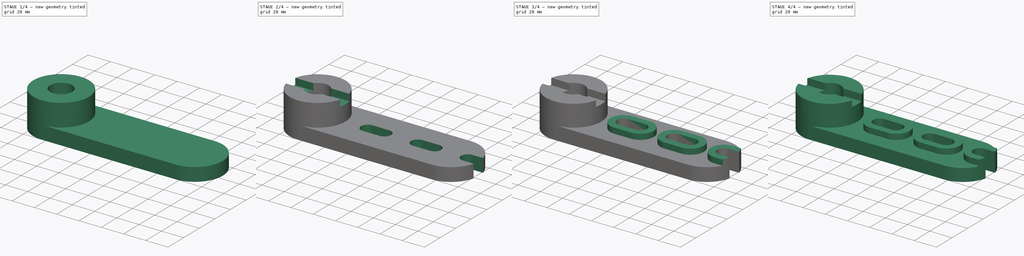
[diagram: build sequence overview — one tinted view per stage of 4, left to right]
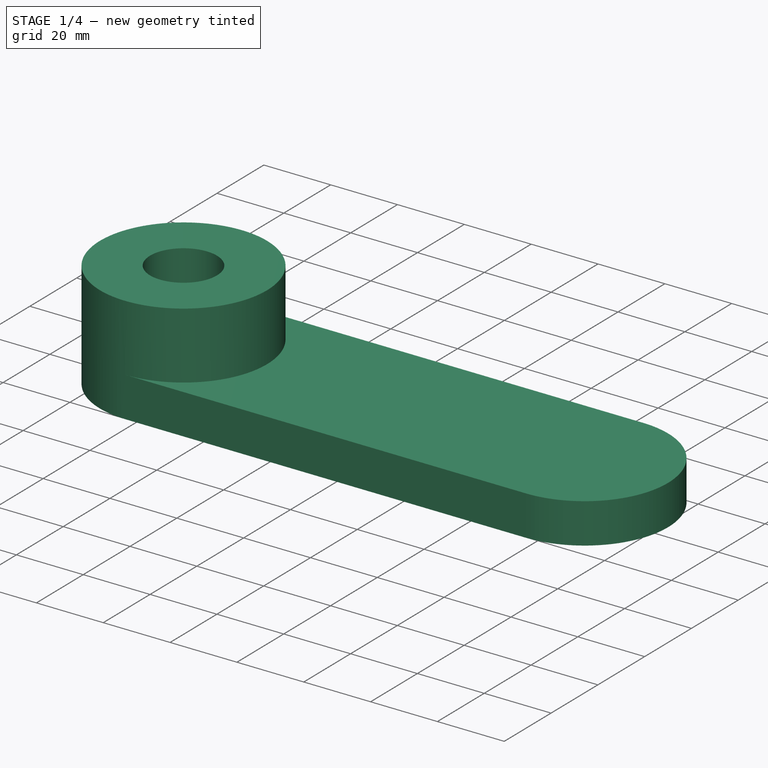
[diagram: stage 1 of 4 — iso view after this stage's code; geometry added in this stage tinted green]
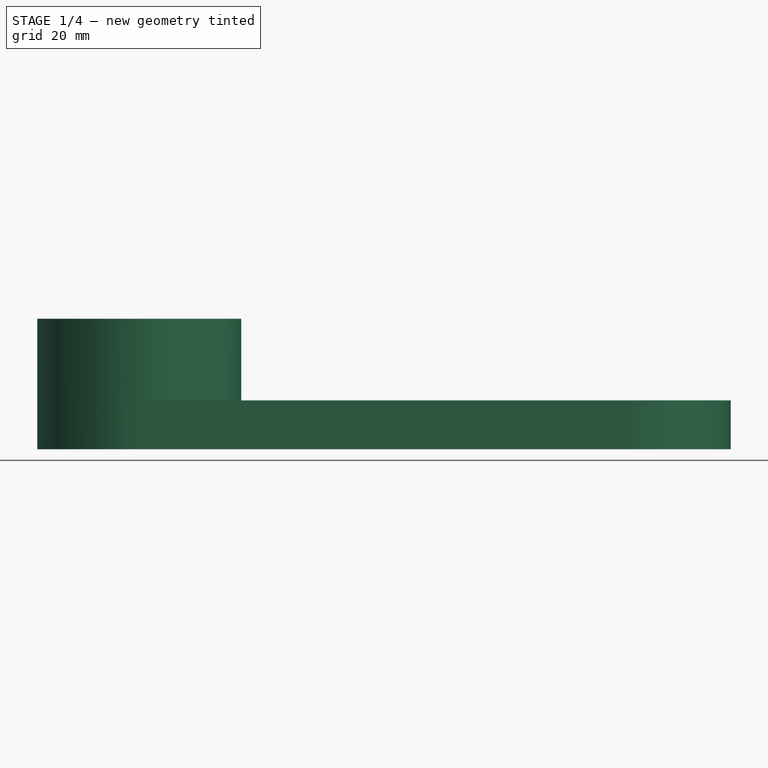
[diagram: stage 1 of 4 — front view after this stage's code; geometry added in this stage tinted green]
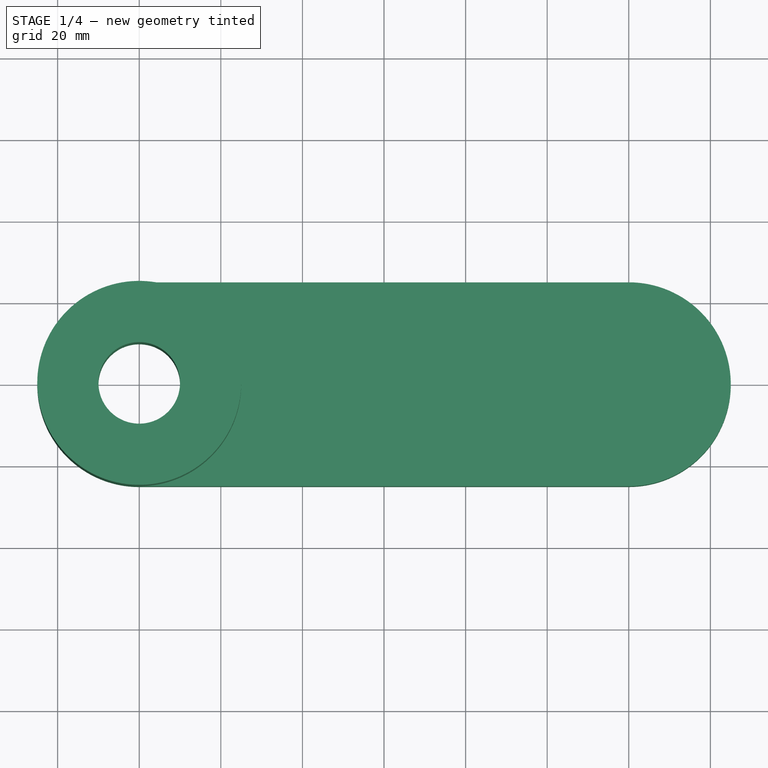
[diagram: stage 1 of 4 — top view after this stage's code; geometry added in this stage tinted green]
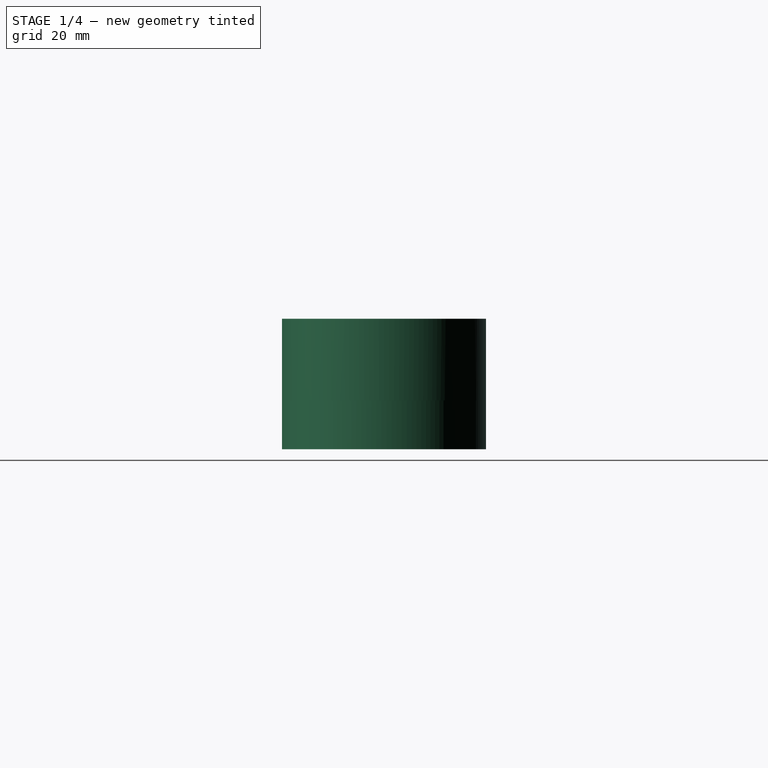
[diagram: stage 1 of 4 — right view after this stage's code; geometry added in this stage tinted green]
FCSTD DOCUMENT  (FreeCAD 1.0R39319 (Git))
Label: FreeCAD_Prj (Exercise 3)
License: All rights reserved
LicenseURL: https://en.wikipedia.org/wiki/All_rights_reserved
objects: TechDraw::DrawViewDimension×16, Sketcher::SketchObject×7, PartDesign::Pocket×4, PartDesign::Fillet×4, TechDraw::DrawViewImage×4, PartDesign::Pad×3, PartDesign::LinearPattern×2, TechDraw::DrawProjGroupItem×2, TechDraw::DrawSVGTemplate×1, PartDesign::Body×1, TechDraw::DrawPage×1
note: 80 computed .brp shape members not serialized (recipe doc carries the construction recipe); baked Part::Feature solids carry a one-line shape summary decoded from their .brp

FEATURE [Sketcher::SketchObject] Sketch
  ArcFitTolerance = 1e-06
  AttachmentSupport = -> [XY_Plane]
  FullyConstrained = true
  MakeInternals = false
  MapMode = 5
  sketch-geometry (4):
    g0: ArcOfCircle CenterX=0 CenterY=0 CenterZ=0 NormalX=0 NormalY=0 NormalZ=1 AngleXU=0 Radius=25 StartAngle=1.5708 EndAngle=4.71239
    g1: ArcOfCircle CenterX=120 CenterY=1.4e-15 CenterZ=0 NormalX=0 NormalY=0 NormalZ=1 AngleXU=0 Radius=25 StartAngle=4.71239 EndAngle=7.85398
    g2: LineSegment StartX=-4e-15 StartY=25 StartZ=0 EndX=120 EndY=25 EndZ=0
    g3: LineSegment StartX=-4.6e-15 StartY=-25 StartZ=0 EndX=120 EndY=-25 EndZ=0
  constraints (9):
    c: Tangent(g0,g2) = 1.5708
    c: Tangent(g0,g3) = -1.5708
    c: Tangent(g1,g2) = 1.5708
    c: Tangent(g1,g3) = -1.5708
    c: Equal(g0,g1)
    c: Horizontal(g3)
    c: Distance(g0,g1) = 120
    c: Radius(g0) = 25
    c: Coincident(g0,g-1)
FEATURE [PartDesign::Pad] Pad
  Direction = (0,0,1)
  Length = 12
  Length2 = 10
  Profile = -> Sketch
  ReferenceAxis = -> Sketch [N_Axis]
  Refine = true
  Suppressed = false
  Type = 0
FEATURE [Sketcher::SketchObject] Sketch001
  ArcFitTolerance = 1e-06
  AttachmentSupport = -> [Pad]
  ExternalGeometry = -> [Pad]
  FullyConstrained = true
  MakeInternals = false
  MapMode = 5
  Placement = pos=(0,0,12) rot=(0,0,1;0rad)
  sketch-geometry (1):
    g0: Circle CenterX=0 CenterY=0 CenterZ=0 NormalX=0 NormalY=0 NormalZ=1 AngleXU=0 Radius=25
  constraints (2):
    c: Coincident(g0,g-1)
    c: PointOnObject(g-5,g0)
FEATURE [PartDesign::Pad] Pad001
  BaseFeature = -> Pad
  Direction = (0,0,1)
  Length = 20
  Length2 = 10
  Profile = -> Sketch001
  Refine = true
  Suppressed = false
  Type = 0
FEATURE [Sketcher::SketchObject] Sketch002
  ArcFitTolerance = 1e-06
  AttachmentSupport = -> [Pad001]
  FullyConstrained = true
  MakeInternals = false
  MapMode = 5
  Placement = pos=(0,0,32) rot=(0,0,1;0rad)
  sketch-geometry (1):
    g0: Circle CenterX=0 CenterY=0 CenterZ=0 NormalX=0 NormalY=0 NormalZ=1 AngleXU=0 Radius=10
  constraints (2):
    c: Diameter(g0) = 20
    c: Coincident(g0,g-1)
FEATURE [PartDesign::Pocket] Pocket
  BaseFeature = -> Pad001
  Direction = (0,0,-1)
  Length = 5
  Length2 = 5
  Profile = -> Sketch002
  ReferenceAxis = -> Sketch002 [N_Axis]
  Refine = true
  Suppressed = false
  Type = 1
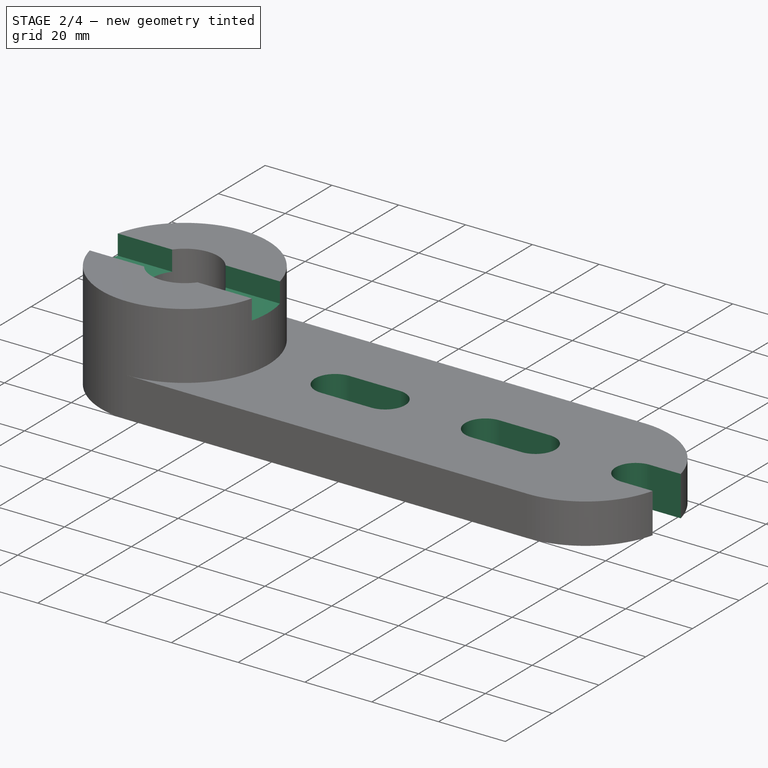
[diagram: stage 2 of 4 — iso view after this stage's code; geometry added in this stage tinted green]
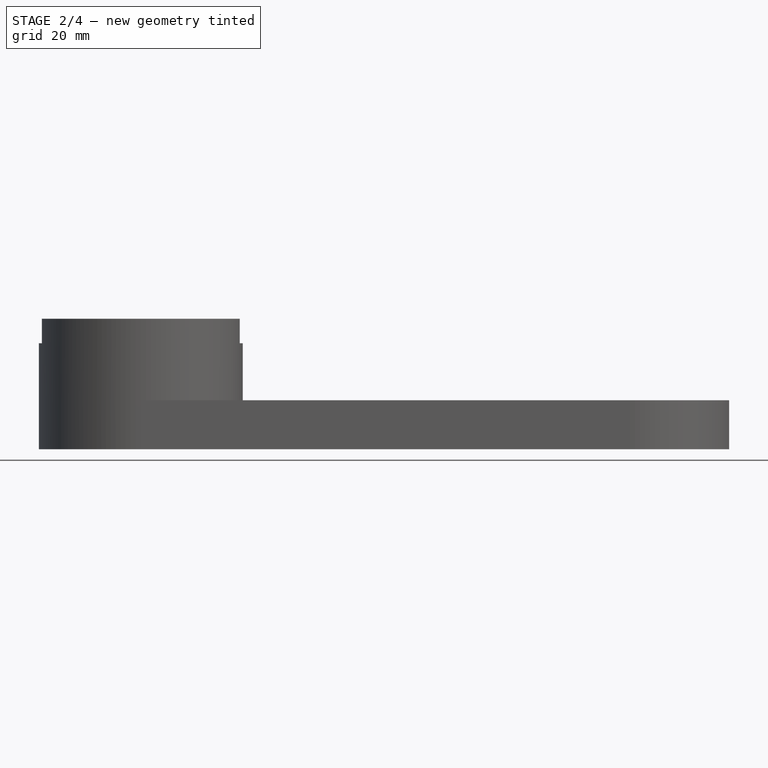
[diagram: stage 2 of 4 — front view after this stage's code; geometry added in this stage tinted green]
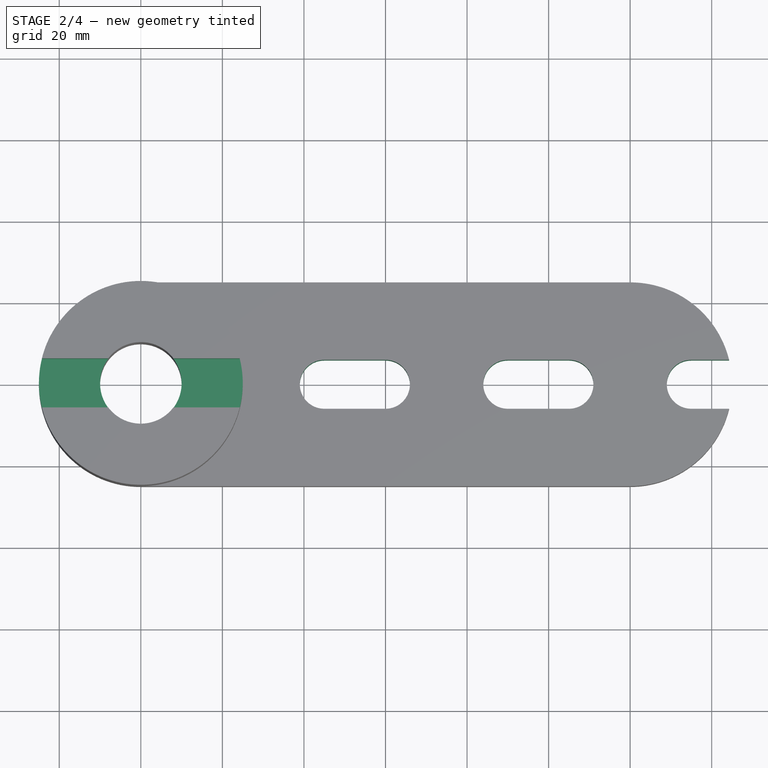
[diagram: stage 2 of 4 — top view after this stage's code; geometry added in this stage tinted green]
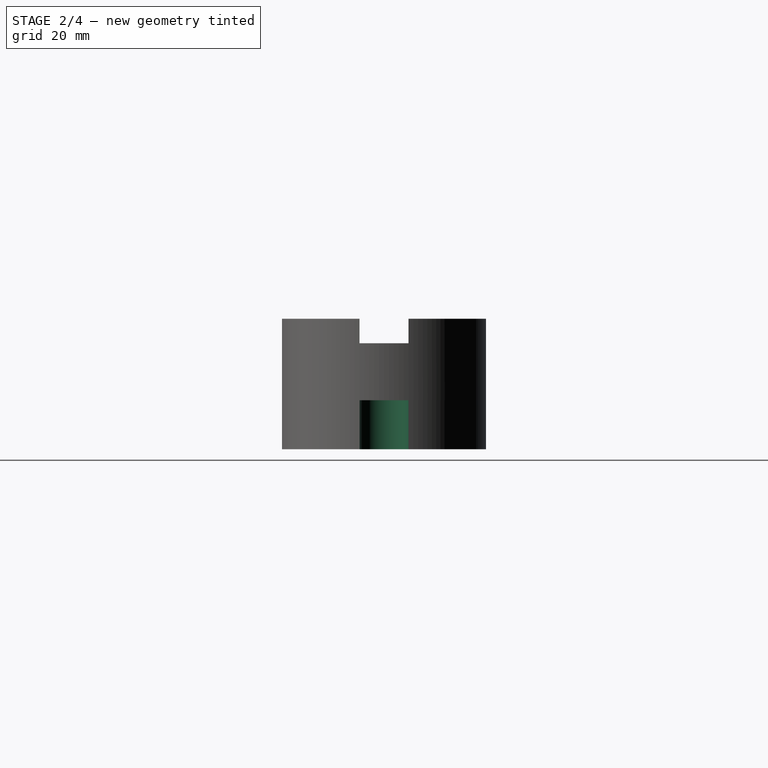
[diagram: stage 2 of 4 — right view after this stage's code; geometry added in this stage tinted green]
FEATURE [Sketcher::SketchObject] Sketch003
  ArcFitTolerance = 1e-06
  AttachmentSupport = -> [Pocket]
  FullyConstrained = false
  MakeInternals = false
  MapMode = 5
  Placement = pos=(0,0,32) rot=(0,0,1;0rad)
  sketch-geometry (4):
    g0: LineSegment StartX=-29.8922 StartY=6 StartZ=0 EndX=-29.8922 EndY=-6 EndZ=0
    g1: LineSegment StartX=-29.8922 StartY=-6 StartZ=0 EndX=30.1078 EndY=-6 EndZ=0
    g2: LineSegment StartX=30.1078 StartY=-6 StartZ=0 EndX=30.1078 EndY=6 EndZ=0
    g3: LineSegment StartX=30.1078 StartY=6 StartZ=0 EndX=-29.8922 EndY=6 EndZ=0
  constraints (10):
    c: Coincident(g0,g1)
    c: Coincident(g1,g2)
    c: Coincident(g2,g3)
    c: Coincident(g3,g0)
    c: Vertical(g2)
    c: Horizontal(g1)
    c: Horizontal(g3)
    c: Distance(g0,g2) = 60
    c: Distance(g1,g3) = 12
    c: Symmetric(g0,g0,g-1)
FEATURE [PartDesign::Pocket] Pocket001
  BaseFeature = -> Pocket
  Direction = (0,0,-1)
  Length = 6
  Length2 = 5
  Profile = -> Sketch003
  ReferenceAxis = -> Sketch003 [N_Axis]
  Refine = true
  Suppressed = false
  Type = 0
FEATURE [Sketcher::SketchObject] Sketch004
  ArcFitTolerance = 1e-06
  AttachmentSupport = -> [Pocket001]
  FullyConstrained = false
  MakeInternals = false
  MapMode = 5
  Placement = pos=(0,0,12) rot=(0,0,1;0rad)
  sketch-geometry (4):
    g0: ArcOfCircle CenterX=44.9906 CenterY=0 CenterZ=0 NormalX=0 NormalY=0 NormalZ=1 AngleXU=0 Radius=6 StartAngle=1.5708 EndAngle=4.71239
    g1: ArcOfCircle CenterX=59.9906 CenterY=3e-16 CenterZ=0 NormalX=0 NormalY=0 NormalZ=1 AngleXU=0 Radius=6 StartAngle=4.71239 EndAngle=7.85398
    g2: LineSegment StartX=44.9906 StartY=6 StartZ=0 EndX=59.9906 EndY=6 EndZ=0
    g3: LineSegment StartX=44.9906 StartY=-6 StartZ=0 EndX=59.9906 EndY=-6 EndZ=0
  constraints (9):
    c: Tangent(g0,g2) = 1.5708
    c: Tangent(g0,g3) = -1.5708
    c: Tangent(g1,g2) = 1.5708
    c: Tangent(g1,g3) = -1.5708
    c: Equal(g0,g1)
    c: Horizontal(g3)
    c: Diameter(g1) = 12
    c: DistanceX(g2,g2) = 15
    c: PointOnObject(g0,g-1)
FEATURE [PartDesign::Pocket] Pocket002
  BaseFeature = -> Pocket001
  Direction = (0,0,-1)
  Length = 5
  Length2 = 5
  Profile = -> Sketch004
  ReferenceAxis = -> Sketch004 [N_Axis]
  Refine = true
  Suppressed = false
  Type = 1
FEATURE [PartDesign::LinearPattern] LinearPattern
  BaseFeature = -> Pocket002
  Direction = -> Sketch004 [H_Axis]
  Length = 90
  Mode = 0
  Occurrences = 3
  Offset = 45
  Originals = -> [Pocket002]
  Refine = true
  Suppressed = false
  TransformMode = 0
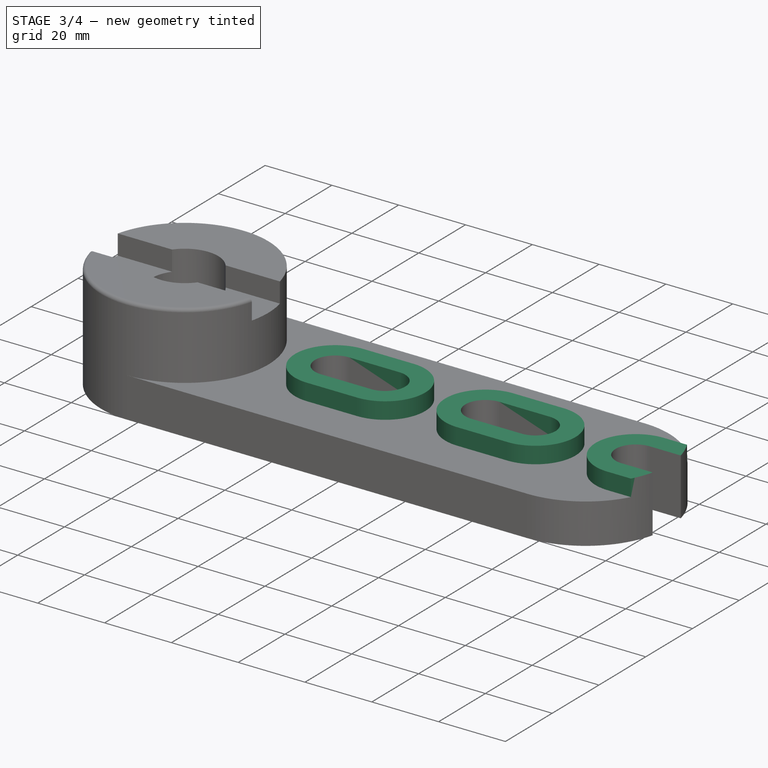
[diagram: stage 3 of 4 — iso view after this stage's code; geometry added in this stage tinted green]
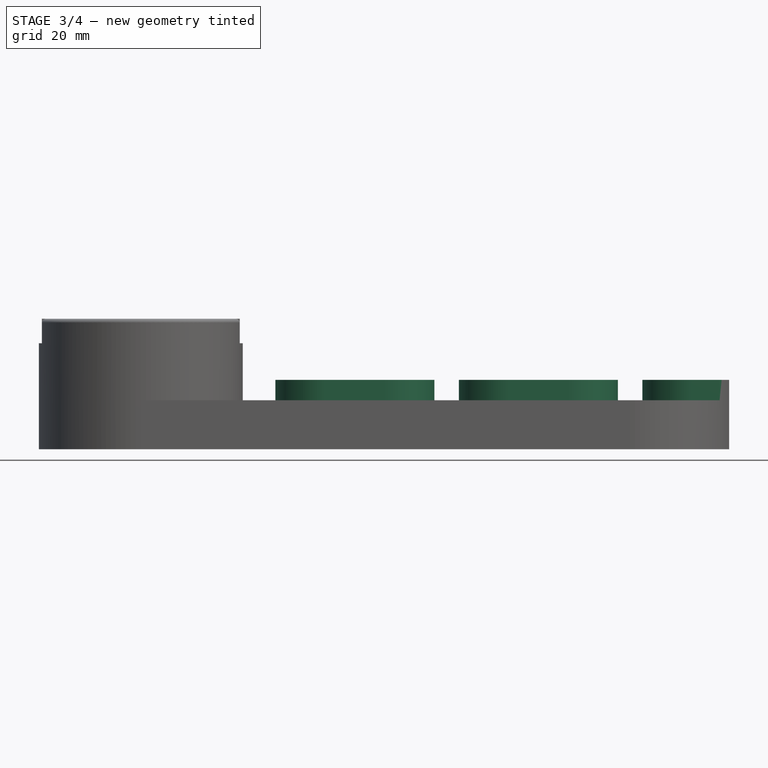
[diagram: stage 3 of 4 — front view after this stage's code; geometry added in this stage tinted green]
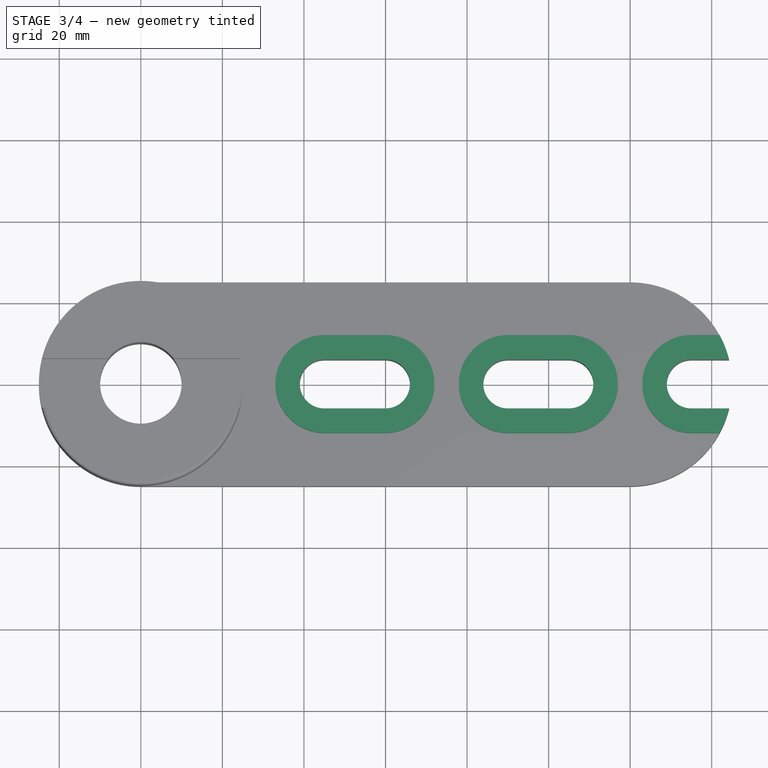
[diagram: stage 3 of 4 — top view after this stage's code; geometry added in this stage tinted green]
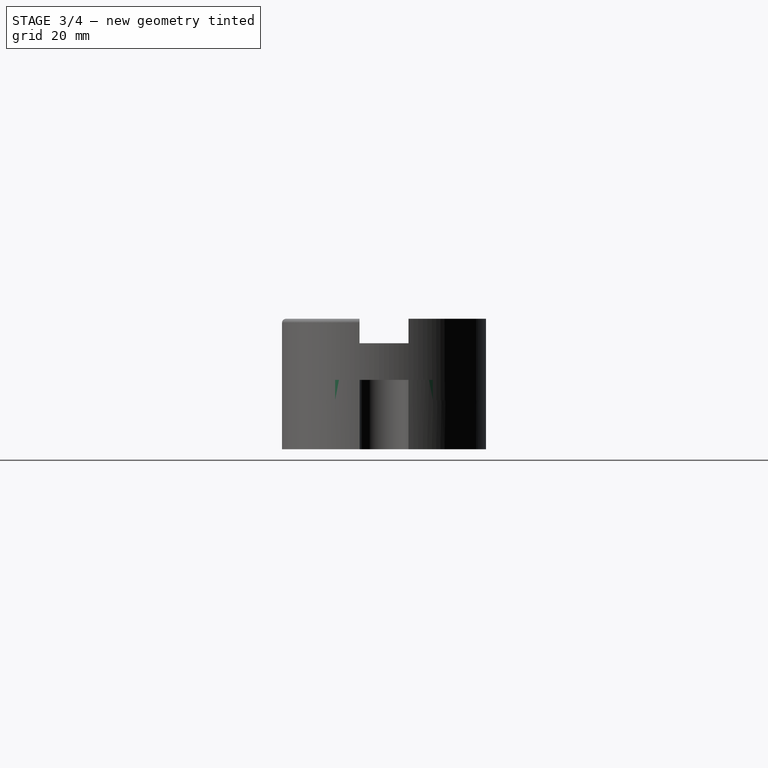
[diagram: stage 3 of 4 — right view after this stage's code; geometry added in this stage tinted green]
FEATURE [Sketcher::SketchObject] Sketch005
  ArcFitTolerance = 1e-06
  AttachmentSupport = -> [LinearPattern]
  ExternalGeometry = -> [LinearPattern]
  FullyConstrained = false
  MakeInternals = false
  MapMode = 5
  Placement = pos=(0,0,12) rot=(0,0,1;0rad)
  sketch-geometry (8):
    g0: LineSegment StartX=59.9906 StartY=6 StartZ=0 EndX=44.9906 EndY=6 EndZ=0
    g1: ArcOfCircle CenterX=44.9906 CenterY=3e-16 CenterZ=0 NormalX=0 NormalY=0 NormalZ=1 AngleXU=0 Radius=6 StartAngle=1.5708 EndAngle=4.71239
    g2: LineSegment StartX=44.9906 StartY=-6 StartZ=0 EndX=59.9907 EndY=-6 EndZ=0
    g3: ArcOfCircle CenterX=59.9907 CenterY=-7.08e-14 CenterZ=0 NormalX=0 NormalY=0 NormalZ=1 AngleXU=0 Radius=6 StartAngle=4.71239 EndAngle=7.85399
    g4: ArcOfCircle CenterX=44.9906 CenterY=3e-16 CenterZ=0 NormalX=0 NormalY=0 NormalZ=1 AngleXU=0 Radius=12 StartAngle=1.5708 EndAngle=4.71239
    g5: ArcOfCircle CenterX=59.9906 CenterY=-6e-16 CenterZ=0 NormalX=0 NormalY=0 NormalZ=1 AngleXU=0 Radius=12 StartAngle=4.71239 EndAngle=7.85398
    g6: LineSegment StartX=44.9906 StartY=12 StartZ=0 EndX=59.9906 EndY=12 EndZ=0
    g7: LineSegment StartX=44.9906 StartY=-12 StartZ=0 EndX=59.9906 EndY=-12 EndZ=0
  constraints (15):
    c: Coincident(g-5,g0)
    c: Coincident(g0,g-5)
    c: Tangent(g0,g1) = -1.5708
    c: Coincident(g1,g-8)
    c: Tangent(g1,g2) = -1.5708
    c: Tangent(g2,g3) = -1.5708
    c: Coincident(g3,g0)
    c: Diameter(g3) = 12
    c: Tangent(g4,g6) = 1.5708
    c: Tangent(g4,g7) = -1.5708
    c: Tangent(g5,g6) = 1.5708
    c: Tangent(g5,g7) = -1.5708
    c: Horizontal(g7)
    c: Coincident(g4,g1)
    c: Diameter(g5) = 24
FEATURE [PartDesign::Pad] Pad002
  BaseFeature = -> LinearPattern
  Direction = (0,0,1)
  Length = 5
  Length2 = 10
  Profile = -> Sketch005
  ReferenceAxis = -> Sketch005 [N_Axis]
  Refine = true
  Suppressed = false
  Type = 0
FEATURE [PartDesign::LinearPattern] LinearPattern001
  BaseFeature = -> Pad002
  Direction = -> Sketch005 [H_Axis]
  Length = 90
  Mode = 0
  Occurrences = 3
  Offset = 45
  Originals = -> [Pad002]
  Refine = true
  Suppressed = false
  TransformMode = 0
FEATURE [Sketcher::SketchObject] Sketch006
  ArcFitTolerance = 1e-06
  AttachmentSupport = -> [LinearPattern001]
  FullyConstrained = true
  MakeInternals = false
  MapMode = 5
  Placement = pos=(0,0,12) rot=(1,0,0;3.14159rad)
FEATURE [PartDesign::Pocket] Pocket003
  BaseFeature = -> LinearPattern001
  Direction = (0,0,1)
  Length = 5
  Length2 = 5
  Profile = -> LinearPattern001 [Face15]
  Refine = true
  Suppressed = false
  Type = 0
FEATURE [PartDesign::Fillet] Fillet
  Base = -> Pocket003 [Edge9]
  BaseFeature = -> Pocket003
  Radius = 1
  Refine = true
  SupportTransform = false
  Suppressed = false
  UseAllEdges = false
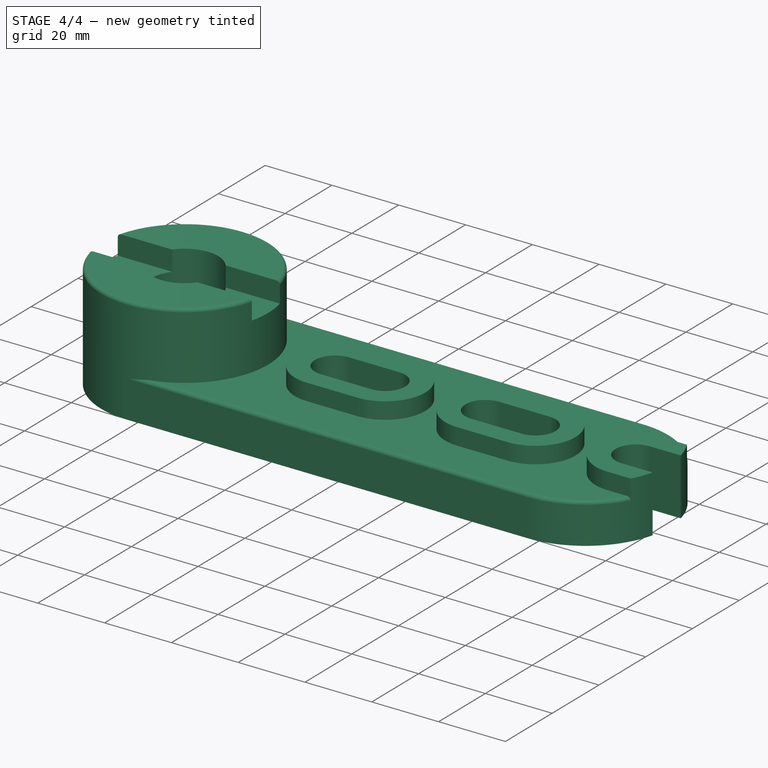
[diagram: stage 4 of 4 — iso view after this stage's code; geometry added in this stage tinted green]
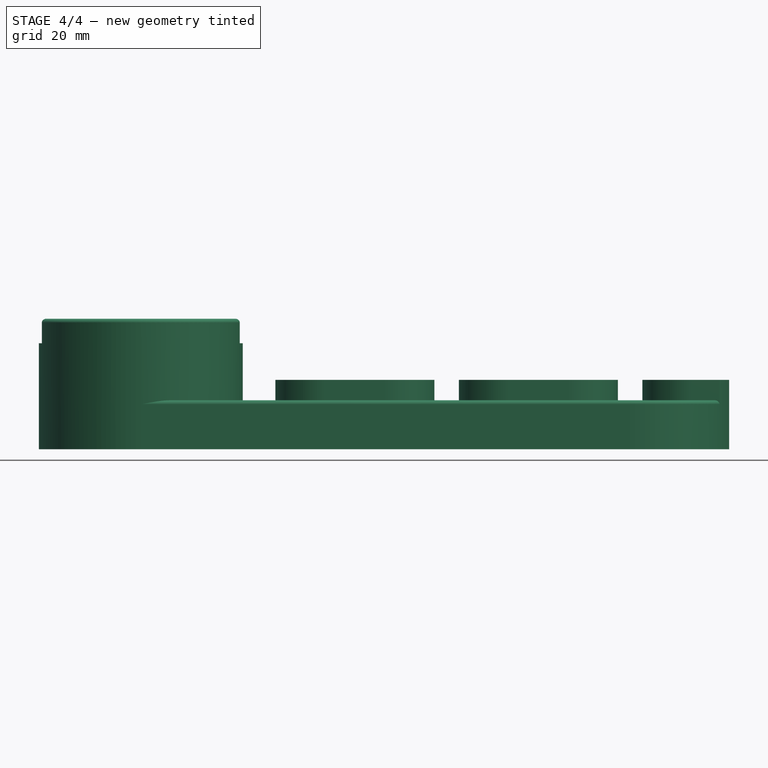
[diagram: stage 4 of 4 — front view after this stage's code; geometry added in this stage tinted green]
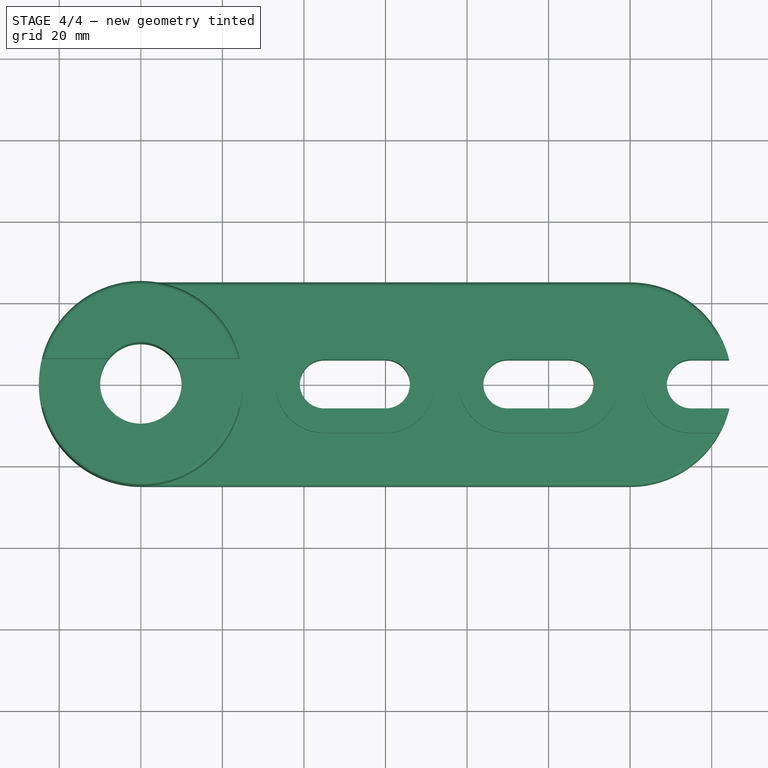
[diagram: stage 4 of 4 — top view after this stage's code; geometry added in this stage tinted green]
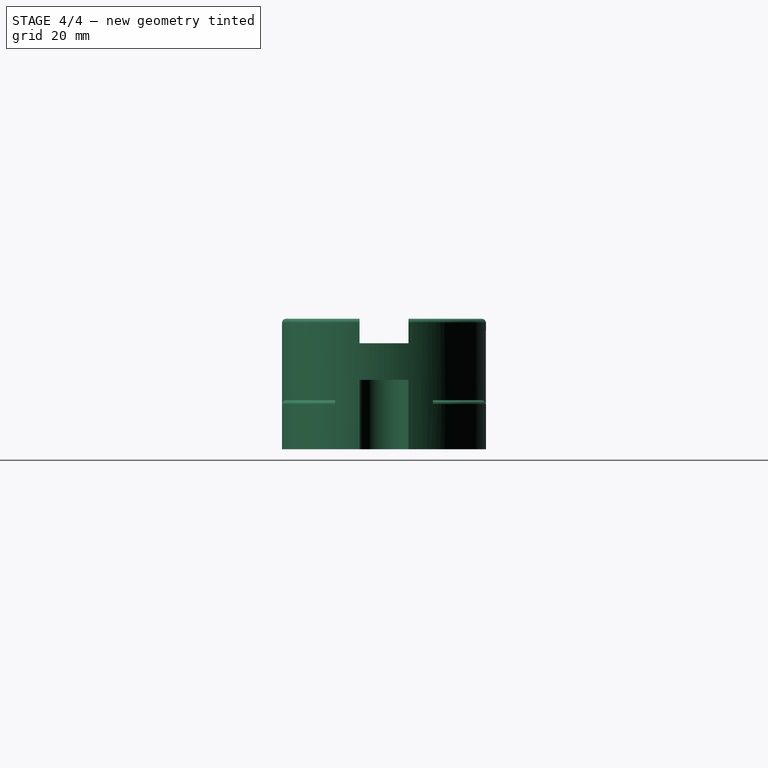
[diagram: stage 4 of 4 — right view after this stage's code; geometry added in this stage tinted green]
FEATURE [PartDesign::Fillet] Fillet001
  Base = -> Fillet [Edge10]
  BaseFeature = -> Fillet
  Radius = 1
  Refine = true
  SupportTransform = false
  Suppressed = false
  UseAllEdges = false
FEATURE [PartDesign::Fillet] Fillet002
  Base = -> Fillet001 [Edge43]
  BaseFeature = -> Fillet001
  Radius = 1
  Refine = true
  SupportTransform = false
  Suppressed = false
  UseAllEdges = false
FEATURE [TechDraw::DrawSVGTemplate] Template
  EditableTexts = approval_person=Engr. Gilfred Allen Madrigal; creator=Laude Ruselle D.; date_of_issue=11/29/2025; document_type=Component Drawing; identification_number=3; language_code=EN; revision_index=AAA; scale=1 : 1; sheet_number=1 / 1; title=FreeCAD_Prj (Exercise 3)
  Height = 210
  Orientation = 1
  Template = <userpath>/AppData/Local/Programs/FreeCAD 1.0/data/Mod/TechDraw/Templates/A4_Landscape_ISO5457_minimal.svg
  Width = 297
FEATURE [PartDesign::Fillet] Fillet003
  Base = -> Fillet002 [Edge24]
  BaseFeature = -> Fillet002
  Radius = 1
  Refine = true
  SupportTransform = false
  Suppressed = false
  UseAllEdges = false
FEATURE [PartDesign::Body] Body
  AllowCompound = false
  Group = -> [Sketch,Pad,Sketch001,Pad001,Sketch002,Pocket,Sketch003,Pocket001,Sketch004,Pocket002,LinearPattern,Sketch005,Pad002,LinearPattern001,Sketch006,Pocket003,Fillet,Fillet001,Fillet002,Fillet003]
  Origin = -> Origin
  Tip = -> Fillet003
FEATURE [TechDraw::DrawProjGroupItem] View
  CoarseView = false
  Direction = (0,0,1)
  Focus = 100
  HardHidden = false
  IsoCount = 0
  IsoHidden = false
  IsoVisible = false
  LockPosition = false
  Perspective = false
  Rotation = 0
  RotationVector = (1,0,0)
  ScaleType = 0
  ScrubCount = 1
  SeamHidden = false
  SeamVisible = false
  SmoothHidden = false
  SmoothVisible = true
  Source = -> [Body]
  Type = 0
  X = 189.733
  XDirection = (1,0,0)
  Y = 151.829
FEATURE [TechDraw::DrawProjGroupItem] View001
  CoarseView = false
  Direction = (1,3e-16,0)
  Focus = 100
  HardHidden = false
  IsoCount = 0
  IsoHidden = false
  IsoVisible = false
  LockPosition = false
  Perspective = false
  Rotation = 0
  RotationVector = (1,0,0)
  ScaleType = 0
  ScrubCount = 1
  SeamHidden = false
  SeamVisible = false
  SmoothHidden = false
  SmoothVisible = true
  Source = -> [Body]
  Type = 0
  X = 74.1426
  XDirection = (0,1e-16,-1)
  Y = 151.829
FEATURE [TechDraw::DrawViewDimension] Dimension
  AngleOverride = false
  Arbitrary = false
  ArbitraryTolerances = false
  BoxCorners = (2) [(-84.6347,-25,-1e-07),(84.6347,25,1e-07)]
  EqualTolerance = true
  ExtensionAngle = 0
  FormatSpec = %.2w
  FormatSpecOverTolerance = %+.2w
  FormatSpecUnderTolerance = %+.2w
  Inverted = false
  LineAngle = 0
  LockPosition = false
  MeasureType = 1
  OverTolerance = 0
  References2D = -> [View]
  Rotation = 0
  ScaleType = 0
  TheoreticalExact = false
  Type = 1
  UnderTolerance = 0
  X = 0.365339
  Y = -27.7402
FEATURE [TechDraw::DrawViewDimension] Dimension001
  AngleOverride = false
  Arbitrary = false
  ArbitraryTolerances = false
  BoxCorners = (2) [(-84.6347,-25,-1e-07),(84.6347,25,1e-07)]
  EqualTolerance = true
  ExtensionAngle = 0
  FormatSpec = R%.2w
  FormatSpecOverTolerance = %+.2w
  FormatSpecUnderTolerance = %+.2w
  Inverted = false
  LineAngle = 0
  LockPosition = false
  MeasureType = 1
  OverTolerance = 0
  References2D = -> [View]
  Rotation = 0
  ScaleType = 0
  TheoreticalExact = false
  Type = 4
  UnderTolerance = 0
  X = -27.6571
  Y = 18.7354
FEATURE [TechDraw::DrawViewDimension] Dimension002
  AngleOverride = false
  Arbitrary = false
  ArbitraryTolerances = false
  BoxCorners = (2) [(-84.6347,-25,-1e-07),(84.6347,25,1e-07)]
  EqualTolerance = true
  ExtensionAngle = 0
  FormatSpec = R%.2w
  FormatSpecOverTolerance = %+.2w
  FormatSpecUnderTolerance = %+.2w
  Inverted = false
  LineAngle = 0
  LockPosition = false
  MeasureType = 1
  OverTolerance = 0
  References2D = -> [View]
  Rotation = 0
  ScaleType = 0
  TheoreticalExact = false
  Type = 4
  UnderTolerance = 0
  X = 17.3972
  Y = 19.1815
FEATURE [TechDraw::DrawViewDimension] Dimension003
  AngleOverride = false
  Arbitrary = false
  ArbitraryTolerances = false
  BoxCorners = (2) [(-84.6347,-25,-1e-07),(84.6347,25,1e-07)]
  EqualTolerance = true
  ExtensionAngle = 0
  FormatSpec = %.2w
  FormatSpecOverTolerance = %+.2w
  FormatSpecUnderTolerance = %+.2w
  Inverted = false
  LineAngle = 0
  LockPosition = false
  MeasureType = 1
  OverTolerance = 0
  References2D = -> [View]
  Rotation = 0
  ScaleType = 0
  TheoreticalExact = false
  Type = 1
  UnderTolerance = 0
  X = -7.14404
  Y = 41.7331
FEATURE [TechDraw::DrawViewDimension] Dimension004
  AngleOverride = false
  Arbitrary = false
  ArbitraryTolerances = false
  BoxCorners = (2) [(-84.6347,-25,-1e-07),(84.6347,25,1e-07)]
  EqualTolerance = true
  ExtensionAngle = 0
  FormatSpec = %.2w
  FormatSpecOverTolerance = %+.2w
  FormatSpecUnderTolerance = %+.2w
  Inverted = false
  LineAngle = 0
  LockPosition = false
  MeasureType = 1
  OverTolerance = 0
  References2D = -> [View]
  Rotation = 0
  ScaleType = 0
  TheoreticalExact = false
  Type = 1
  UnderTolerance = 0
  X = 15.356
  Y = 41.7331
FEATURE [TechDraw::DrawViewDimension] Dimension005
  AngleOverride = false
  Arbitrary = false
  ArbitraryTolerances = false
  BoxCorners = (2) [(-84.6347,-25,-1e-07),(84.6347,25,1e-07)]
  EqualTolerance = true
  ExtensionAngle = 0
  FormatSpec = %.2w
  FormatSpecOverTolerance = %+.2w
  FormatSpecUnderTolerance = %+.2w
  Inverted = false
  LineAngle = 0
  LockPosition = false
  MeasureType = 1
  OverTolerance = 0
  References2D = -> [View]
  Rotation = 0
  ScaleType = 0
  TheoreticalExact = false
  Type = 1
  UnderTolerance = 0
  X = 37.856
  Y = 41.7331
FEATURE [TechDraw::DrawViewDimension] Dimension006
  AngleOverride = false
  Arbitrary = false
  ArbitraryTolerances = false
  BoxCorners = (2) [(-84.6347,-25,-1e-07),(84.6347,25,1e-07)]
  EqualTolerance = true
  ExtensionAngle = 0
  FormatSpec = %.2w
  FormatSpecOverTolerance = %+.2w
  FormatSpecUnderTolerance = %+.2w
  Inverted = false
  LineAngle = 0
  LockPosition = false
  MeasureType = 1
  OverTolerance = 0
  References2D = -> [View]
  Rotation = 0
  ScaleType = 0
  TheoreticalExact = false
  Type = 1
  UnderTolerance = 0
  X = 60.356
  Y = 41.7331
FEATURE [TechDraw::DrawViewDimension] Dimension007
  AngleOverride = false
  Arbitrary = false
  ArbitraryTolerances = false
  BoxCorners = (2) [(-84.6347,-25,-1e-07),(84.6347,25,1e-07)]
  EqualTolerance = true
  ExtensionAngle = 0
  FormatSpec = R%.2w
  FormatSpecOverTolerance = %+.2w
  FormatSpecUnderTolerance = %+.2w
  Inverted = false
  LineAngle = 0
  LockPosition = false
  MeasureType = 1
  OverTolerance = 0
  References2D = -> [View]
  Rotation = 0
  ScaleType = 0
  TheoreticalExact = false
  Type = 4
  UnderTolerance = 0
  X = -82.2836
  Y = -25.7179
FEATURE [TechDraw::DrawViewDimension] Dimension008
  AngleOverride = false
  Arbitrary = false
  ArbitraryTolerances = false
  BoxCorners = (2) [(-84.6347,-25,-1e-07),(84.6347,25,1e-07)]
  EqualTolerance = true
  ExtensionAngle = 0
  FormatSpec = R%.2w
  FormatSpecOverTolerance = %+.2w
  FormatSpecUnderTolerance = %+.2w
  Inverted = false
  LineAngle = 0
  LockPosition = false
  MeasureType = 1
  OverTolerance = 0
  References2D = -> [View]
  Rotation = 0
  ScaleType = 0
  TheoreticalExact = false
  Type = 4
  UnderTolerance = 0
  X = -79.4522
  Y = 27.3288
FEATURE [TechDraw::DrawViewDimension] Dimension009
  AngleOverride = false
  Arbitrary = false
  ArbitraryTolerances = false
  BoxCorners = (2) [(-16,-25,-1e-07),(16,25,1e-07)]
  EqualTolerance = true
  ExtensionAngle = 0
  FormatSpec = %.2w
  FormatSpecOverTolerance = %+.2w
  FormatSpecUnderTolerance = %+.2w
  Inverted = false
  LineAngle = 0
  LockPosition = false
  MeasureType = 1
  OverTolerance = 0
  References2D = -> [View001]
  Rotation = 0
  ScaleType = 0
  TheoreticalExact = false
  Type = 2
  UnderTolerance = 0
  X = -31.7813
  Y = 15.5
FEATURE [TechDraw::DrawViewDimension] Dimension010
  AngleOverride = false
  Arbitrary = false
  ArbitraryTolerances = false
  BoxCorners = (2) [(-16,-25,-1e-07),(16,25,1e-07)]
  EqualTolerance = true
  ExtensionAngle = 0
  FormatSpec = %.2w
  FormatSpecOverTolerance = %+.2w
  FormatSpecUnderTolerance = %+.2w
  Inverted = false
  LineAngle = 0
  LockPosition = false
  MeasureType = 1
  OverTolerance = 0
  References2D = -> [View001]
  Rotation = 0
  ScaleType = 0
  TheoreticalExact = false
  Type = 2
  UnderTolerance = 0
  X = -31.7813
  Y = -15.5
FEATURE [TechDraw::DrawViewDimension] Dimension011
  AngleOverride = false
  Arbitrary = false
  ArbitraryTolerances = false
  BoxCorners = (2) [(-16,-25,-1e-07),(16,25,1e-07)]
  EqualTolerance = true
  ExtensionAngle = 0
  FormatSpec = %.2w
  FormatSpecOverTolerance = %+.2w
  FormatSpecUnderTolerance = %+.2w
  Inverted = false
  LineAngle = 0
  LockPosition = false
  MeasureType = 1
  OverTolerance = 0
  References2D = -> [View001]
  Rotation = 0
  ScaleType = 0
  TheoreticalExact = false
  Type = 2
  UnderTolerance = 0
  X = -31.7813
  Y = 0
FEATURE [TechDraw::DrawViewDimension] Dimension012
  AngleOverride = false
  Arbitrary = false
  ArbitraryTolerances = false
  BoxCorners = (2) [(-16,-25,-1e-07),(16,25,1e-07)]
  EqualTolerance = true
  ExtensionAngle = 0
  FormatSpec = %.2w
  FormatSpecOverTolerance = %+.2w
  FormatSpecUnderTolerance = %+.2w
  Inverted = false
  LineAngle = 0
  LockPosition = false
  MeasureType = 1
  OverTolerance = 0
  References2D = -> [View001]
  Rotation = 0
  ScaleType = 0
  TheoreticalExact = false
  Type = 1
  UnderTolerance = 0
  X = 10
  Y = 40.9783
FEATURE [TechDraw::DrawViewDimension] Dimension013
  AngleOverride = false
  Arbitrary = false
  ArbitraryTolerances = false
  BoxCorners = (2) [(-16,-25,-1e-07),(16,25,1e-07)]
  EqualTolerance = true
  ExtensionAngle = 0
  FormatSpec = %.2w
  FormatSpecOverTolerance = %+.2w
  FormatSpecUnderTolerance = %+.2w
  Inverted = false
  LineAngle = 0
  LockPosition = false
  MeasureType = 1
  OverTolerance = 0
  References2D = -> [View001]
  Rotation = 0
  ScaleType = 0
  TheoreticalExact = false
  Type = 1
  UnderTolerance = 0
  X = -6
  Y = 40.9783
FEATURE [TechDraw::DrawViewDimension] Dimension014
  AngleOverride = false
  Arbitrary = false
  ArbitraryTolerances = false
  BoxCorners = (2) [(-16,-25,-1e-07),(16,25,1e-07)]
  EqualTolerance = true
  ExtensionAngle = 0
  FormatSpec = %.2w
  FormatSpecOverTolerance = %+.2w
  FormatSpecUnderTolerance = %+.2w
  Inverted = false
  LineAngle = 0
  LockPosition = false
  MeasureType = 1
  OverTolerance = 0
  References2D = -> [View001]
  Rotation = 0
  ScaleType = 0
  TheoreticalExact = false
  Type = 1
  UnderTolerance = 0
  X = -24.3575
  Y = -28.0325
FEATURE [TechDraw::DrawViewDimension] Dimension015
  AngleOverride = false
  Arbitrary = false
  ArbitraryTolerances = false
  BoxCorners = (2) [(-16,-25,-1e-07),(16,25,1e-07)]
  EqualTolerance = true
  ExtensionAngle = 0
  FormatSpec = %.2w
  FormatSpecOverTolerance = %+.2w
  FormatSpecUnderTolerance = %+.2w
  Inverted = false
  LineAngle = 0
  LockPosition = false
  MeasureType = 1
  OverTolerance = 0
  References2D = -> [View001]
  Rotation = 0
  ScaleType = 0
  TheoreticalExact = false
  Type = 1
  UnderTolerance = 0
  X = 13.0467
  Y = -28.0325
FEATURE [TechDraw::DrawViewImage] ActiveView
  Height = 102.4
  ImageFile = <userpath>/AppData/Local/cache/FreeCAD/Cache/FreeCAD_Doc_dcde620e-42c9-4773-9d7d-0a48a9fecee3_0a7666_370052/PagA265.tmp.png
  LockPosition = false
  Rotation = 0
  ScaleType = 2
  Width = 128
  X = 81.119
  Y = 86.3898
FEATURE [TechDraw::DrawViewImage] ActiveView001
  Height = 102.4
  ImageFile = <userpath>/AppData/Local/cache/FreeCAD/Cache/FreeCAD_Doc_dcde620e-42c9-4773-9d7d-0a48a9fecee3_0a7666_370052/PagB7BF.tmp.png
  LockPosition = false
  Rotation = 0
  ScaleType = 2
  Width = 128
  X = 146.304
  Y = 103.902
FEATURE [TechDraw::DrawViewImage] ActiveView002
  Height = 102.4
  ImageFile = <userpath>/AppData/Local/cache/FreeCAD/Cache/FreeCAD_Doc_dcde620e-42c9-4773-9d7d-0a48a9fecee3_0a7666_370052/Pag91F3.tmp.png
  LockPosition = false
  Rotation = 0
  ScaleType = 2
  Width = 128
  X = 238.179
  Y = 94.019
FEATURE [TechDraw::DrawViewImage] ActiveView003
  Height = 102.4
  ImageFile = <userpath>/AppData/Local/cache/FreeCAD/Cache/FreeCAD_Doc_dcde620e-42c9-4773-9d7d-0a48a9fecee3_0a7666_370052/PagF5AF.tmp.png
  LockPosition = false
  Rotation = 0
  ScaleType = 2
  Width = 128
  X = 235.616
  Y = 94.019
FEATURE [TechDraw::DrawPage] Page
  KeepUpdated = true
  NextBalloonIndex = 1
  ProjectionType = 0
  Template = -> Template
  Views = -> [View,View001,Dimension,Dimension001,Dimension002,Dimension003,Dimension004,Dimension005,Dimension006,Dimension007,Dimension008,Dimension009,Dimension010,Dimension011,Dimension012,Dimension013,Dimension014,Dimension015,ActiveView,ActiveView001,ActiveView002,ActiveView003]
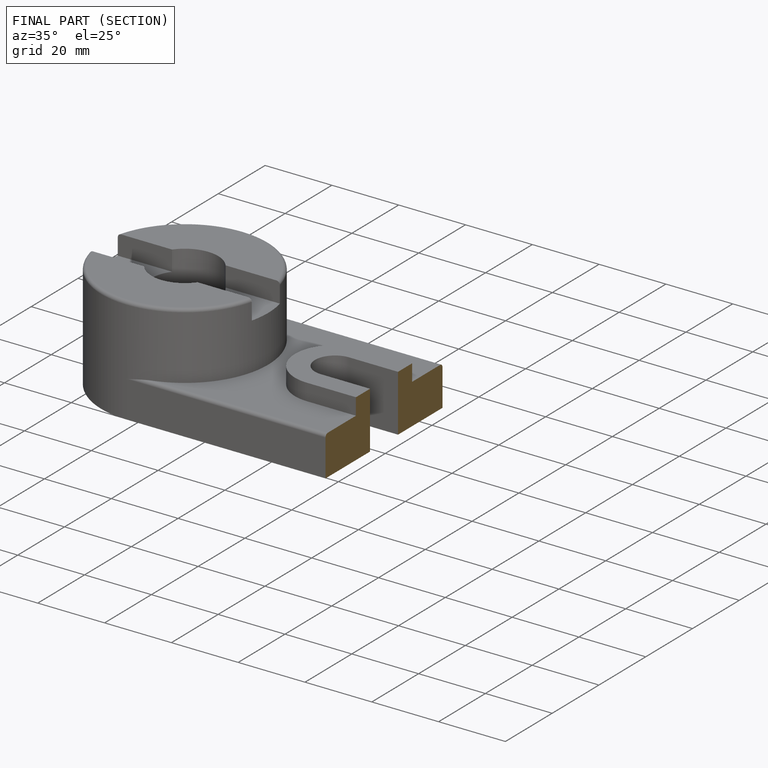
[diagram: finished part — half-section view (interior)]
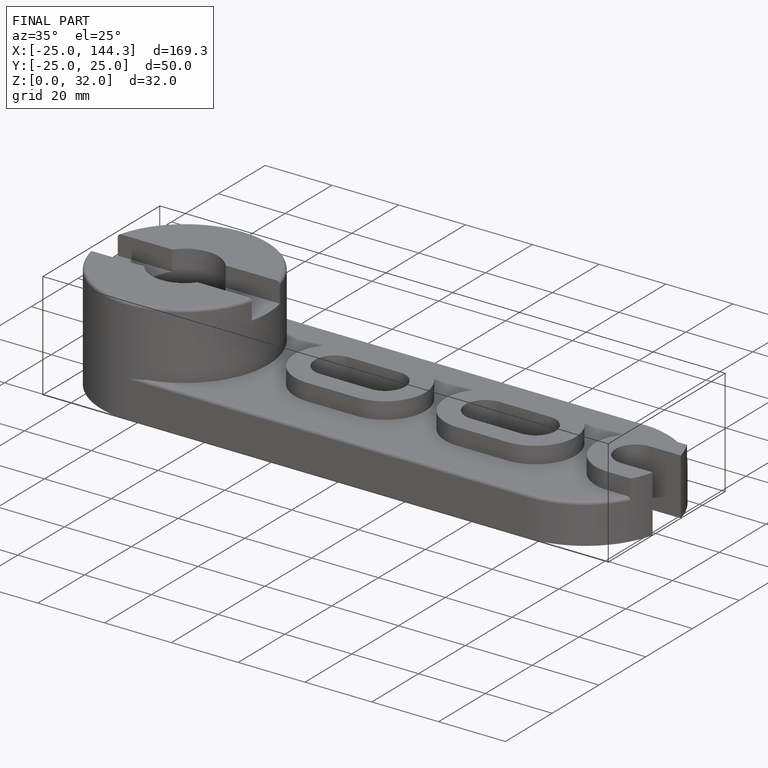
[diagram: finished part — iso view with bounding-box wireframe]
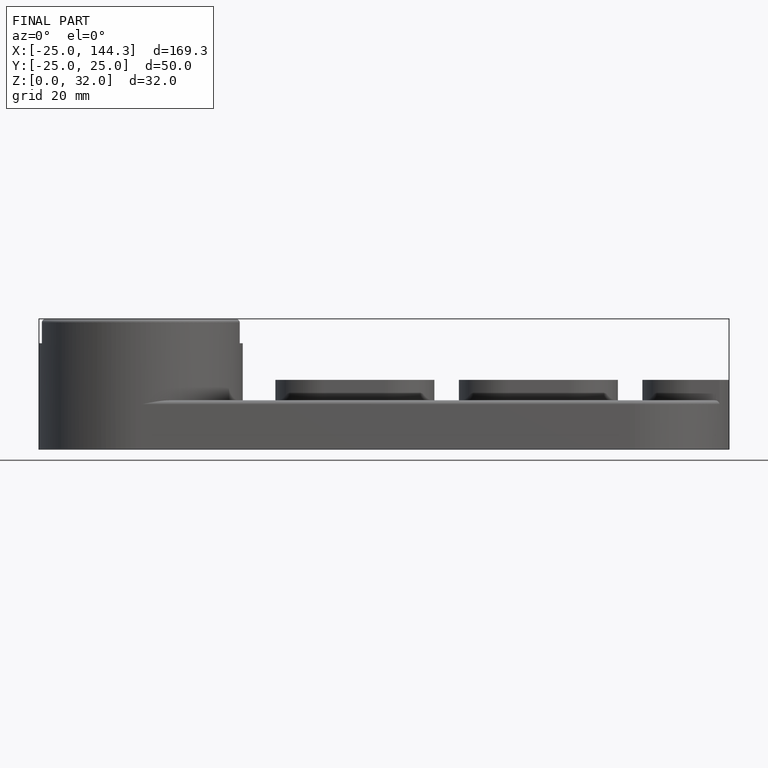
[diagram: finished part — front view with bounding-box wireframe]
